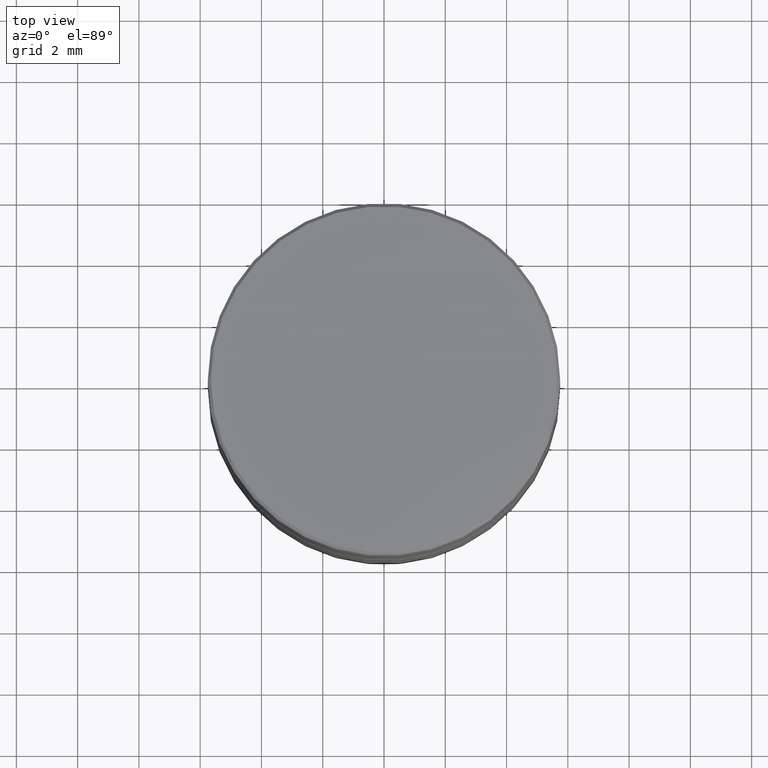
[diagram: clean part render]
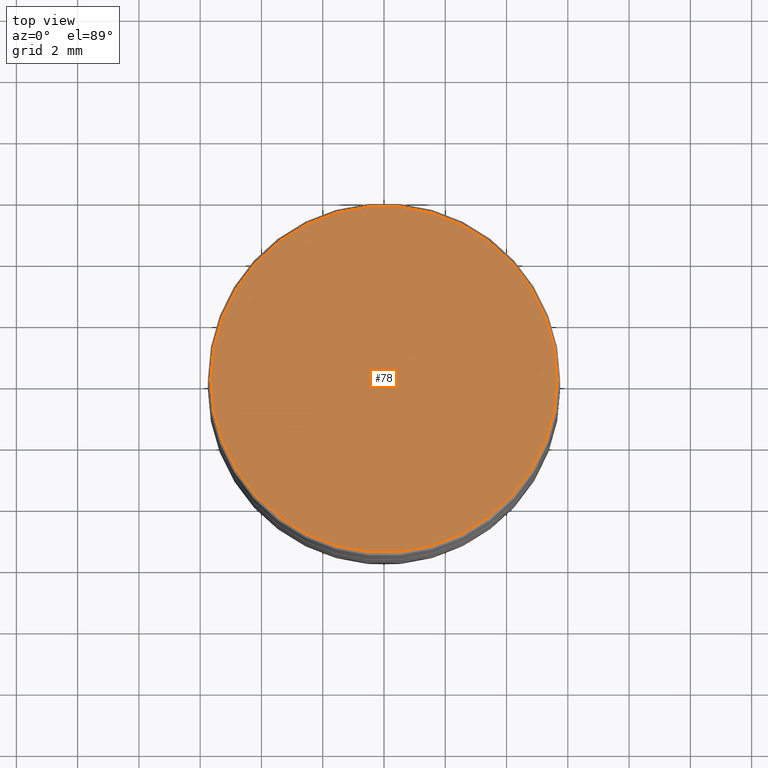
[diagram: same view with one face highlighted and labeled with its STEP entity id]
A machine part, top view. The second image highlights one B-rep face of the part: STEP entity #78.
In plain terms, the highlighted planar face has unit normal (0, -0, 1).
Its self-contained STEP definition (entity closure, byte-faithful):
#54 = CIRCLE ( 'NONE', #1054, 5.650000000000005684 ) ;
#77 = DIRECTION ( 'NONE',  ( 1.000000000000000000, 0.000000000000000000, 0.000000000000000000 ) ) ;
#78 = ADVANCED_FACE ( 'NONE', ( #297 ), #1134, .T. ) ;
#180 = CARTESIAN_POINT ( 'NONE',  ( 0.000000000000000000, 0.000000000000000000, 0.000000000000000000 ) ) ;
#185 = CARTESIAN_POINT ( 'NONE',  ( 0.000000000000000000, 0.000000000000000000, 0.000000000000000000 ) ) ;
#294 = CARTESIAN_POINT ( 'NONE',  ( 0.000000000000000000, 0.000000000000000000, 0.000000000000000000 ) ) ;
#297 = FACE_OUTER_BOUND ( 'NONE', #802, .T. ) ;
#312 = CIRCLE ( 'NONE', #885, 5.650000000000005684 ) ;
#415 = DIRECTION ( 'NONE',  ( -0.000000000000000000, -0.000000000000000000, 1.000000000000000000 ) ) ;
#568 = CARTESIAN_POINT ( 'NONE',  ( -5.650000000000005684, 0.000000000000000000, 0.000000000000000000 ) ) ;
#570 = AXIS2_PLACEMENT_3D ( 'NONE', #185, #830, #1254 ) ;
#605 = DIRECTION ( 'NONE',  ( -0.000000000000000000, -0.000000000000000000, 1.000000000000000000 ) ) ;
#612 = EDGE_CURVE ( 'NONE', #729, #1230, #54, .T. ) ;
#628 = ORIENTED_EDGE ( 'NONE', *, *, #612, .T. ) ;
#729 = VERTEX_POINT ( 'NONE', #568 ) ;
#743 = CARTESIAN_POINT ( 'NONE',  ( 5.650000000000005684, 6.980486755139916067E-16, 0.000000000000000000 ) ) ;
#802 = EDGE_LOOP ( 'NONE', ( #628, #1366 ) ) ;
#830 = DIRECTION ( 'NONE',  ( 0.000000000000000000, -0.000000000000000000, 1.000000000000000000 ) ) ;
#885 = AXIS2_PLACEMENT_3D ( 'NONE', #294, #415, #1060 ) ;
#1054 = AXIS2_PLACEMENT_3D ( 'NONE', #180, #605, #77 ) ;
#1060 = DIRECTION ( 'NONE',  ( 1.000000000000000000, 0.000000000000000000, 0.000000000000000000 ) ) ;
#1134 = PLANE ( 'NONE',  #570 ) ;
#1230 = VERTEX_POINT ( 'NONE', #743 ) ;
#1254 = DIRECTION ( 'NONE',  ( 1.000000000000000000, 0.000000000000000000, 0.000000000000000000 ) ) ;
#1353 = EDGE_CURVE ( 'NONE', #1230, #729, #312, .T. ) ;
#1366 = ORIENTED_EDGE ( 'NONE', *, *, #1353, .T. ) ;